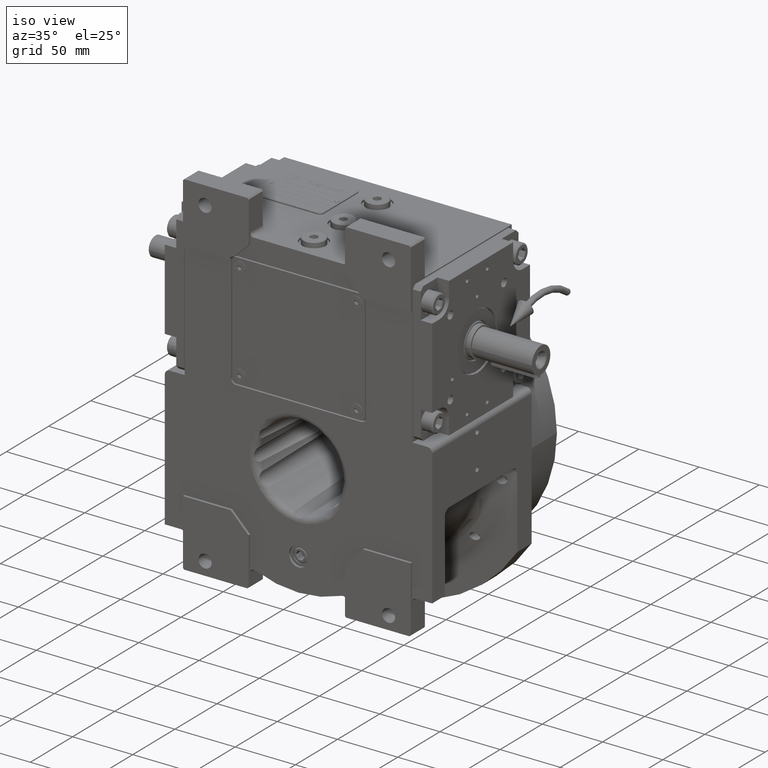
[diagram: clean part render]
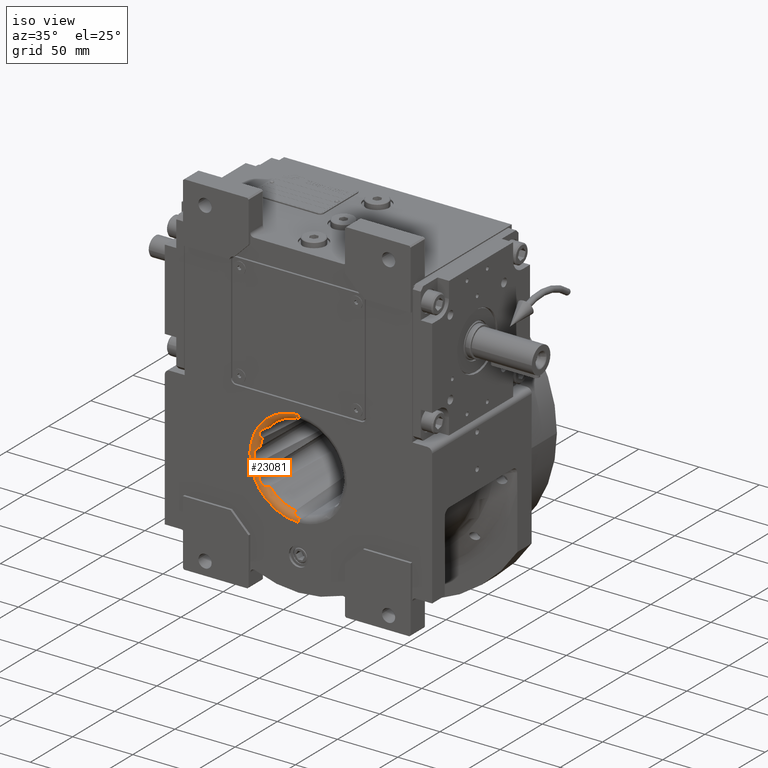
[diagram: same view with one face highlighted and labeled with its STEP entity id]
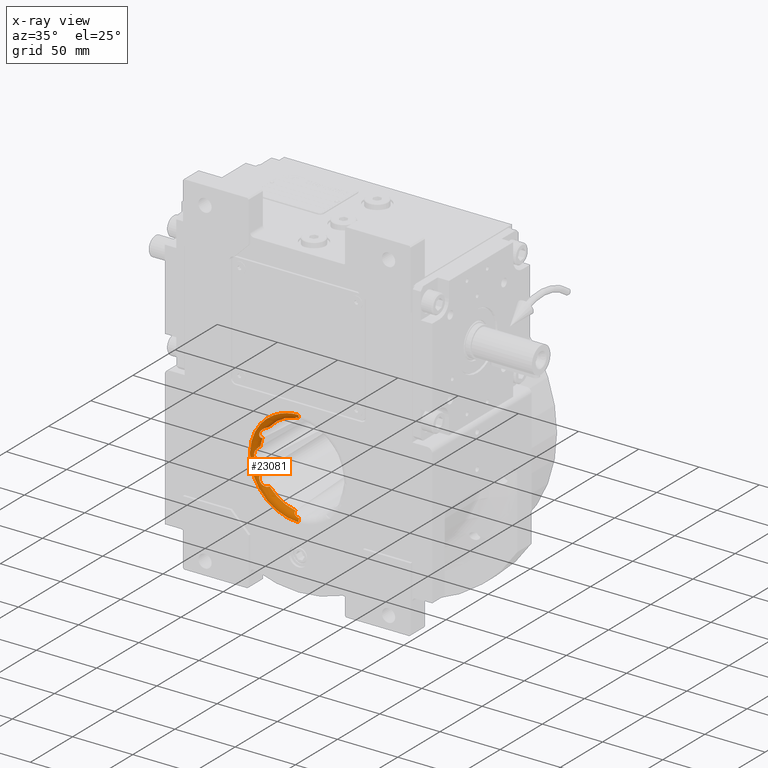
[diagram: x-ray of the same camera — body ghosted, the highlighted face saturated]
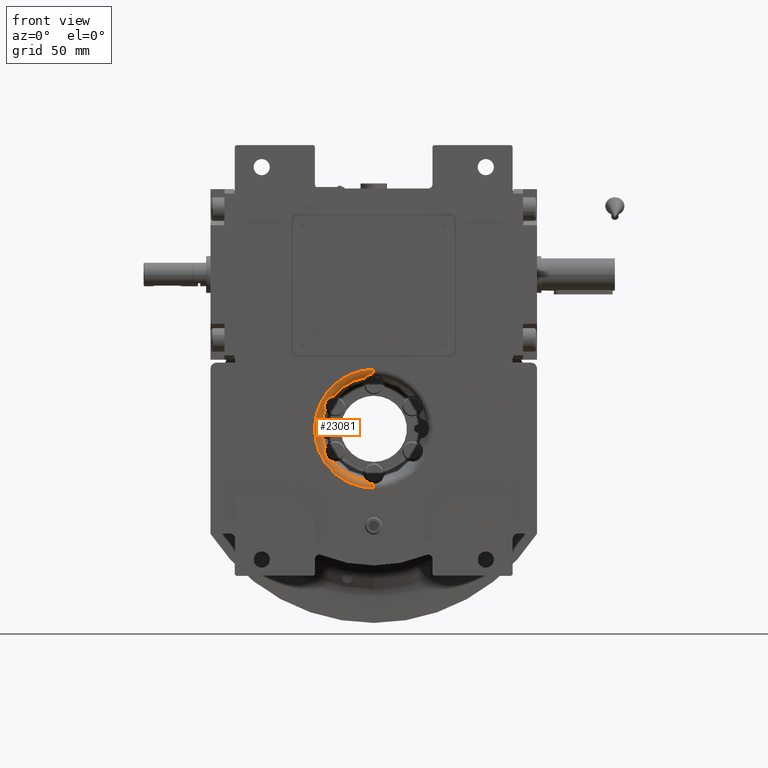
[diagram: same view with one face highlighted and labeled with its STEP entity id]
A machine part, iso view. The second image highlights one B-rep face of the part: STEP entity #23081.
The next image is the same camera in x-ray: the body ghosted, the highlighted face saturated — about 0% of this face is hidden behind the body in this view.
A second angle (front view) of the same face is appended — the face is thin or edge-on in the first view.
In plain terms, the highlighted toroidal blend (fillet) surface has major radius 40.3096 mm and minor (blend) radius 5 mm.
Its self-contained STEP definition (entity closure, byte-faithful):
#72 = AXIS2_PLACEMENT_3D ( 'NONE', #7279, #6939, #23350 ) ;
#605 = CARTESIAN_POINT ( 'NONE',  ( -33.18463355244283264, -52.51304589151614266, -17.09080855749210670 ) ) ;
#707 = CARTESIAN_POINT ( 'NONE',  ( -3.873265404993707417, -51.88301660350855826, -36.42246871604197622 ) ) ;
#1011 = CARTESIAN_POINT ( 'NONE',  ( -33.13981055533902520, -49.92077090289513563, -12.76320821760508650 ) ) ;
#1065 = CARTESIAN_POINT ( 'NONE',  ( -1.915896034665662384, -52.49325482596481862, -37.25139006299750122 ) ) ;
#1416 = CARTESIAN_POINT ( 'NONE',  ( -3.552697779826194946, -52.03964563101411045, -36.60600020603263260 ) ) ;
#1633 = CARTESIAN_POINT ( 'NONE',  ( -5.709080662315418664, -49.04780223731273736, 34.86273980539079531 ) ) ;
#1641 = CARTESIAN_POINT ( 'NONE',  ( -33.16420768629468796, -50.08288911404545019, 12.84237103832086291 ) ) ;
#1791 = CARTESIAN_POINT ( 'NONE',  ( -33.48066850808882577, -51.94653394036682670, 15.00006573923518260 ) ) ;
#1872 = CARTESIAN_POINT ( 'NONE',  ( -34.84639029672330679, -48.69402850002909844, -5.723853692384699876 ) ) ;
#2139 = CARTESIAN_POINT ( 'NONE',  ( -32.27624098121643215, -52.63306527710172844, 19.08495180356094423 ) ) ;
#2318 = VERTEX_POINT ( 'NONE', #51293 ) ;
#2322 = CARTESIAN_POINT ( 'NONE',  ( -5.387433122653863649, -50.25629916344718140, 35.21784468955429759 ) ) ;
#2328 = CARTESIAN_POINT ( 'NONE',  ( -33.20376525769709275, -50.31782160579956553, 12.98095620934589256 ) ) ;
#2476 = CARTESIAN_POINT ( 'NONE',  ( -37.25098423368843470, -52.49300947963147479, 1.917445575779191724 ) ) ;
#2806 = CARTESIAN_POINT ( 'NONE',  ( -35.41752721714449592, -50.64966747116820756, 5.186441859107392638 ) ) ;
#2999 = CARTESIAN_POINT ( 'NONE',  ( -33.24545701223924254, -50.54520048868180737, 13.13682072575895887 ) ) ;
#3131 = CARTESIAN_POINT ( 'NONE',  ( -37.21721553879910971, -52.47236002905658125, 2.040129607822566804 ) ) ;
#3421 = EDGE_CURVE ( 'NONE', #47916, #64871, #22805, .T. ) ;
#3686 = CARTESIAN_POINT ( 'NONE',  ( -4.541814814041481796, -51.43050647626387928, 35.97103802571810149 ) ) ;
#3872 = CARTESIAN_POINT ( 'NONE',  ( -35.71156677532395207, -51.11644979081465578, -4.870261559808177765 ) ) ;
#3987 = CARTESIAN_POINT ( 'NONE',  ( -5.723853692384750502, -48.69402850002909844, -34.84639029672324995 ) ) ;
#4221 = CARTESIAN_POINT ( 'NONE',  ( -37.20514037371771110, -52.46491046812602832, -2.082363054648926681 ) ) ;
#4530 = VERTEX_POINT ( 'NONE', #39465 ) ;
#4573 = CARTESIAN_POINT ( 'NONE',  ( -35.38985876883432269, -50.60022425254800993, -5.215066509444270082 ) ) ;
#4890 = CARTESIAN_POINT ( 'NONE',  ( -33.43725824763967580, -51.51270214224268784, -14.17376328051294720 ) ) ;
#5517 = CARTESIAN_POINT ( 'NONE',  ( -33.28157461314903287, -52.45048440668971779, -16.71832979066892833 ) ) ;
#5632 = CARTESIAN_POINT ( 'NONE',  ( -3.858442048008802860, -51.89094338257653050, -36.43138624565670369 ) ) ;
#5876 = CARTESIAN_POINT ( 'NONE',  ( -29.83633626812149586, -51.99876485710264262, -21.43405917139864769 ) ) ;
#5936 = CARTESIAN_POINT ( 'NONE',  ( -33.24545450998900975, -50.54515852359235595, -13.13677640902548305 ) ) ;
#6274 = CARTESIAN_POINT ( 'NONE',  ( -33.26639435941415712, -50.65332744764122452, -13.21983680953254847 ) ) ;
#6939 = DIRECTION ( 'NONE',  ( 0.000000000000000000, 1.000000000000000000, 0.000000000000000000 ) ) ;
#6947 = CARTESIAN_POINT ( 'NONE',  ( 7.105427357600998703E-15, -48.69402850002909844, 3.907985046680549760E-14 ) ) ;
#7028 = CARTESIAN_POINT ( 'NONE',  ( -37.47512975713212313, -52.62272417589633733, 0.7071437188893635595 ) ) ;
#7046 = CARTESIAN_POINT ( 'NONE',  ( -27.49880254169563543, -49.71014762109352603, 22.34948615973246433 ) ) ;
#7129 = EDGE_CURVE ( 'NONE', #62687, #60997, #30265, .T. ) ;
#7234 = CARTESIAN_POINT ( 'NONE',  ( -33.07614190768946827, -49.41840807794840629, 12.56593321534884033 ) ) ;
#7279 = CARTESIAN_POINT ( 'NONE',  ( 4.263256414560599853E-14, -48.69402850002909844, 0.000000000000000000 ) ) ;
#7338 = ORIENTED_EDGE ( 'NONE', *, *, #44630, .F. ) ;
#7358 = CARTESIAN_POINT ( 'NONE',  ( -36.44970332882142117, -51.90707011274375304, 3.827281497563381762 ) ) ;
#7380 = CARTESIAN_POINT ( 'NONE',  ( -33.28154941635014552, -52.45048733185149814, 16.71838823757915549 ) ) ;
#7567 = CARTESIAN_POINT ( 'NONE',  ( -33.45300411767336612, -51.61031179591828533, 14.33060310004557358 ) ) ;
#7733 = CARTESIAN_POINT ( 'NONE',  ( -30.73910345686766377, -52.35670050590202607, 20.82169795244909949 ) ) ;
#8064 = CARTESIAN_POINT ( 'NONE',  ( -36.47933388216215178, -51.93305820750704527, 3.777234142068195855 ) ) ;
#8090 = CARTESIAN_POINT ( 'NONE',  ( -31.97974603071826394, -52.60864723382204033, 19.50957310057121674 ) ) ;
#8264 = CARTESIAN_POINT ( 'NONE',  ( -33.43721194408176700, -51.51252245797751783, 14.17352376836019090 ) ) ;
#8314 = VERTEX_POINT ( 'NONE', #10220 ) ;
#8399 = CARTESIAN_POINT ( 'NONE',  ( -36.23459986853838188, -51.71445036787732619, 4.182271700431572370 ) ) ;
#8417 = CARTESIAN_POINT ( 'NONE',  ( -33.31069636601494466, -52.42586585141022226, 16.58975659442783979 ) ) ;
#8585 = CARTESIAN_POINT ( 'NONE',  ( -1.402137547263518469, -52.58474267382023015, 37.39942789236153686 ) ) ;
#8731 = CARTESIAN_POINT ( 'NONE',  ( -36.60484686924328201, -52.03864515488976394, 3.554194316089945183 ) ) ;
#8937 = CARTESIAN_POINT ( 'NONE',  ( -3.629204774569512182, -52.01591010109680013, 36.57070120480117481 ) ) ;
#8941 = VERTEX_POINT ( 'NONE', #47624 ) ;
#9287 = CARTESIAN_POINT ( 'NONE',  ( -2.887888764027416677, -52.28084012361226485, 36.92445607941008490 ) ) ;
#9733 = EDGE_CURVE ( 'NONE', #4530, #69030, #68381, .T. ) ;
#10067 = AXIS2_PLACEMENT_3D ( 'NONE', #65839, #38510, #59572 ) ;
#10163 = CARTESIAN_POINT ( 'NONE',  ( -35.37957790959985260, -50.58149279196173609, -5.225635647150380869 ) ) ;
#10220 = CARTESIAN_POINT ( 'NONE',  ( 1.603850723419534978E-09, -52.63596184683439816, -37.50000000000000000 ) ) ;
#10246 = DIRECTION ( 'NONE',  ( 1.823279159433930648E-09, -1.000000000000000000, -5.938027847207545066E-11 ) ) ;
#10433 = CARTESIAN_POINT ( 'NONE',  ( -27.81307528316129662, -50.27039267515787202, -22.27274870067007839 ) ) ;
#10454 = CARTESIAN_POINT ( 'NONE',  ( -80.61913312124997333, -53.49999999999999289, 40.30955543265923069 ) ) ;
#10511 = CARTESIAN_POINT ( 'NONE',  ( -34.86271863150035699, -49.04715064752940634, -5.709053451315803329 ) ) ;
#10764 = CARTESIAN_POINT ( 'NONE',  ( -30.73873988946485625, -52.35657776437595601, -20.82196410583442159 ) ) ;
#10814 = AXIS2_PLACEMENT_3D ( 'NONE', #42696, #16755, #38147 ) ;
#10872 = CARTESIAN_POINT ( 'NONE',  ( -2.038649379472030176, -52.47262412882859905, -37.21764271321538331 ) ) ;
#11174 = CARTESIAN_POINT ( 'NONE',  ( -33.48065902542213479, -51.94651877671617513, -15.00005041233808178 ) ) ;
#11800 = CARTESIAN_POINT ( 'NONE',  ( -31.82140708146827990, -52.58895953837681247, -19.71265100759440259 ) ) ;
#11901 = CARTESIAN_POINT ( 'NONE',  ( -3.825310640006858609, -51.90841265313808606, -36.45116754972293904 ) ) ;
#11914 = VERTEX_POINT ( 'NONE', #69055 ) ;
#12634 = CARTESIAN_POINT ( 'NONE',  ( -27.31593238095755183, -48.69402850002909844, 22.38019785351225011 ) ) ;
#12815 = CARTESIAN_POINT ( 'NONE',  ( -5.244244369721090315, -50.54810657213914737, 35.36152057421080741 ) ) ;
#12822 = CARTESIAN_POINT ( 'NONE',  ( -33.48054826416817065, -51.92894447340994901, 14.95929972303022737 ) ) ;
#12947 = CARTESIAN_POINT ( 'NONE',  ( -36.05591315747005865, -51.53332729828146341, 4.434423661270974648 ) ) ;
#12956 =( BOUNDED_CURVE ( )  B_SPLINE_CURVE ( 3, ( #51803, #31798, #10454, #42284 ),
 .UNSPECIFIED., .F., .F. ) 
 B_SPLINE_CURVE_WITH_KNOTS ( ( 4, 4 ),
 ( 1.432582689913126872, 4.574174019572492256 ),
 .UNSPECIFIED. ) 
 CURVE ( )  GEOMETRIC_REPRESENTATION_ITEM ( )  RATIONAL_B_SPLINE_CURVE ( ( 1.000000000000000000, 0.3333337746434759108, 0.3333337746434759108, 1.000000000000000000 ) ) 
 REPRESENTATION_ITEM ( '' )  );
#13147 = EDGE_LOOP ( 'NONE', ( #56792, #65827, #37470, #56391, #51188, #17355, #7338, #53738, #37037, #68287, #26068, #52101, #65219, #69190, #49192 ) ) ;
#13653 = CARTESIAN_POINT ( 'NONE',  ( -29.37057729870876699, -51.75232895819640078, 21.69044457255830238 ) ) ;
#13984 = CARTESIAN_POINT ( 'NONE',  ( -32.41530913567244454, -52.63782740952818529, 18.86193024834298981 ) ) ;
#14250 = AXIS2_PLACEMENT_3D ( 'NONE', #45812, #30069, #19875 ) ;
#15278 = TOROIDAL_SURFACE ( 'NONE', #10814, 40.30959420584725450, 5.000000000000000000 ) ;
#16095 = CARTESIAN_POINT ( 'NONE',  ( -3.339907106195123987, -52.12907734838216811, -36.71780282096259640 ) ) ;
#16217 = CARTESIAN_POINT ( 'NONE',  ( -27.31593238095755183, -48.69402850002909844, -22.38019785351220392 ) ) ;
#16325 = CARTESIAN_POINT ( 'NONE',  ( -31.22114954024809563, -52.47539370177713636, -20.36706681157427923 ) ) ;
#16381 = CARTESIAN_POINT ( 'NONE',  ( -33.04683412989722768, -49.06316082897349418, -12.48812047595954944 ) ) ;
#16433 = CARTESIAN_POINT ( 'NONE',  ( -1.644874037740767792, -52.53311730977171123, -37.31807545137642990 ) ) ;
#16485 = EDGE_CURVE ( 'NONE', #60997, #8941, #30305, .T. ) ;
#16743 = CARTESIAN_POINT ( 'NONE',  ( -33.47880876522896187, -51.87426845277273202, -14.83847188803557948 ) ) ;
#16755 = DIRECTION ( 'NONE',  ( 4.918457069522380007E-18, -1.000000000000000000, 1.317897701722361855E-19 ) ) ;
#16791 = CARTESIAN_POINT ( 'NONE',  ( -5.185284180732797843, -50.65179097772966088, -35.41871935916735481 ) ) ;
#17039 = CARTESIAN_POINT ( 'NONE',  ( -32.27610797783171392, -52.63304389908925174, -19.08511628727421794 ) ) ;
#17079 = CARTESIAN_POINT ( 'NONE',  ( -33.48065902542213479, -51.94651877671617513, -15.00005041233808178 ) ) ;
#17143 = CARTESIAN_POINT ( 'NONE',  ( -4.180282007070017514, -51.71590935629716057, -36.23605893271851386 ) ) ;
#17355 = ORIENTED_EDGE ( 'NONE', *, *, #39297, .F. ) ;
#17359 = CARTESIAN_POINT ( 'NONE',  ( -33.48066850808882577, -51.94653394036682670, 15.00006573923518260 ) ) ;
#17445 = VERTEX_POINT ( 'NONE', #62996 ) ;
#17693 = CARTESIAN_POINT ( 'NONE',  ( -5.660053882841972417, -49.38902629018181045, 34.92249272574539276 ) ) ;
#17699 = CARTESIAN_POINT ( 'NONE',  ( -33.48019679877684496, -51.91098471384786706, 14.91874690793963509 ) ) ;
#17870 = CARTESIAN_POINT ( 'NONE',  ( -31.57118587857673475, -52.54735018177039763, 20.00172411728818744 ) ) ;
#18057 = CARTESIAN_POINT ( 'NONE',  ( -33.47920624286720681, -51.88341688618768899, 14.85827326806622928 ) ) ;
#18218 = CARTESIAN_POINT ( 'NONE',  ( -29.10636611566708254, -51.59332625701392772, 21.82219709305469380 ) ) ;
#18529 = CARTESIAN_POINT ( 'NONE',  ( -34.84639029672324995, -48.69402850002909844, 5.723853692384790470 ) ) ;
#18548 = CARTESIAN_POINT ( 'NONE',  ( -33.48087625288028590, -52.14504185209687392, 15.46143532285286959 ) ) ;
#18729 = CARTESIAN_POINT ( 'NONE',  ( -4.234545782369425027, -51.66433971525663083, 36.19103113200473132 ) ) ;
#18735 = CARTESIAN_POINT ( 'NONE',  ( -33.22426399728276181, -50.43316458786283363, 13.05520228204081334 ) ) ;
#19071 = CARTESIAN_POINT ( 'NONE',  ( -2.729881623492799392, -52.32472363895173828, 36.98829363976439311 ) ) ;
#19216 = CARTESIAN_POINT ( 'NONE',  ( -35.59153589107744864, -50.93297691740608002, 4.999542714259984422 ) ) ;
#19235 = CARTESIAN_POINT ( 'NONE',  ( -31.30987083567114126, -52.49528762525406478, 20.27890224730619551 ) ) ;
#19407 = CARTESIAN_POINT ( 'NONE',  ( -5.052230305298202495, -50.88291087528137524, 35.54746896820848434 ) ) ;
#19875 = DIRECTION ( 'NONE',  ( -1.823235189940330996E-09, -1.000000000000000000, 5.937889069329574197E-11 ) ) ;
#19929 = CARTESIAN_POINT ( 'NONE',  ( -37.49999999996260414, -52.63596185006461070, 8.021083177529011375E-14 ) ) ;
#20094 = CARTESIAN_POINT ( 'NONE',  ( -2.211513715078419207, -52.44106279324884667, 37.16683635482556980 ) ) ;
#20945 = CARTESIAN_POINT ( 'NONE',  ( -33.47919926927412604, -51.88335013683047947, -14.85813770133309220 ) ) ;
#20964 = CARTESIAN_POINT ( 'NONE',  ( -36.25584774437306379, -51.72874381554331791, -4.138326285946494210 ) ) ;
#21040 = DIRECTION ( 'NONE',  ( 1.000000000000000000, 1.823279159426514974E-09, 1.249135085591654028E-10 ) ) ;
#21232 = CARTESIAN_POINT ( 'NONE',  ( -30.33721481329616054, -52.22506984246449946, -21.12382421556090151 ) ) ;
#21347 = CARTESIAN_POINT ( 'NONE',  ( -5.165745639727560956, -50.68437087273895969, -35.43741778940820808 ) ) ;
#21604 = CARTESIAN_POINT ( 'NONE',  ( -37.49999999996260414, -52.63596185006461070, 8.021083177529011375E-14 ) ) ;
#21623 = CARTESIAN_POINT ( 'NONE',  ( -34.84639029672324995, -48.69402850002909844, 5.723853692384790470 ) ) ;
#21695 = CARTESIAN_POINT ( 'NONE',  ( -1.392152352208962274, -52.56464103771448748, -37.37202038903561885 ) ) ;
#21927 = CARTESIAN_POINT ( 'NONE',  ( -28.35016232162652727, -50.97036712872834130, -22.11845893550750830 ) ) ;
#22043 = CARTESIAN_POINT ( 'NONE',  ( -2.408118901776639564, -52.40757125818002038, -37.11215947056903275 ) ) ;
#22287 = CARTESIAN_POINT ( 'NONE',  ( -27.99487110530884948, -50.53926129246902832, -22.22432816892106189 ) ) ;
#22805 = CIRCLE ( 'NONE', #67605, 35.31336033009884545 ) ;
#22966 = CARTESIAN_POINT ( 'NONE',  ( -33.47463011282244594, -51.80151121282146676, 14.68520001375111406 ) ) ;
#23081 = ADVANCED_FACE ( 'NONE', ( #58511 ), #15278, .T. ) ;
#23112 = CARTESIAN_POINT ( 'NONE',  ( -33.43874839451936509, -52.29148303849282797, 15.95211892573137469 ) ) ;
#23350 = DIRECTION ( 'NONE',  ( -0.9867763920224401630, 0.000000000000000000, 0.1620874830058620097 ) ) ;
#23469 = CARTESIAN_POINT ( 'NONE',  ( -27.88221631701399517, -50.37978553059161158, 22.25508433607395986 ) ) ;
#23654 = CARTESIAN_POINT ( 'NONE',  ( -33.46934774206440011, -51.74677745830565812, 14.57902418020779933 ) ) ;
#23794 = CARTESIAN_POINT ( 'NONE',  ( -37.23410423135980096, -52.48271245820203745, 1.979424650383082573 ) ) ;
#24125 = CARTESIAN_POINT ( 'NONE',  ( -36.42988016328607159, -51.88955295918238164, 3.860482598544243693 ) ) ;
#25203 = CARTESIAN_POINT ( 'NONE',  ( -37.39900705304798834, -52.58451861614253176, -1.404435147095376868 ) ) ;
#25355 = CARTESIAN_POINT ( 'NONE',  ( -2.080993371778599776, -52.46516507062594314, 37.20554895856389521 ) ) ;
#26068 = ORIENTED_EDGE ( 'NONE', *, *, #36686, .T. ) ;
#26222 = CARTESIAN_POINT ( 'NONE',  ( -33.22428206948126928, -50.43317977599809865, -13.05517705560438202 ) ) ;
#26243 = CARTESIAN_POINT ( 'NONE',  ( -36.36603438118659426, -51.83193400220010005, -3.964955959277055353 ) ) ;
#26434 = CARTESIAN_POINT ( 'NONE',  ( -2.273736754432320090E-13, -48.69402850002909844, -2.664535259100374750E-14 ) ) ;
#26506 = CARTESIAN_POINT ( 'NONE',  ( -27.31593238095755183, -48.69402850002909844, -22.38019785351220392 ) ) ;
#26612 = CARTESIAN_POINT ( 'NONE',  ( -4.998169086099377267, -50.93486924980448549, -35.59279415036061778 ) ) ;
#26854 = CARTESIAN_POINT ( 'NONE',  ( -33.26553695913618469, -52.46253985258577757, -16.78490719616134186 ) ) ;
#26929 = EDGE_CURVE ( 'NONE', #17445, #54419, #27959, .T. ) ;
#26969 = CARTESIAN_POINT ( 'NONE',  ( -4.759485884212919515, -51.22257027136030416, -35.79913352069126375 ) ) ;
#27217 = CARTESIAN_POINT ( 'NONE',  ( -32.98485581098537267, -52.58824656776976525, -17.69557827719220455 ) ) ;
#27325 = CARTESIAN_POINT ( 'NONE',  ( -1.770545072158311584, -52.51592466892537203, -37.28897095162052011 ) ) ;
#27613 = CARTESIAN_POINT ( 'NONE',  ( -33.16425630549210268, -50.08303215230356642, -12.84238301068604393 ) ) ;
#27904 = CARTESIAN_POINT ( 'NONE',  ( -33.07242516352254569, -52.56323015633705609, -17.45515814675720634 ) ) ;
#27959 = CIRCLE ( 'NONE', #10067, 35.31336033009876729 ) ;
#28016 = CARTESIAN_POINT ( 'NONE',  ( -0.3553892396707352686, -52.63601862953337474, -37.50008358898192284 ) ) ;
#28307 = DIRECTION ( 'NONE',  ( 0.000000000000000000, 1.000000000000000000, 0.000000000000000000 ) ) ;
#28402 = CARTESIAN_POINT ( 'NONE',  ( -33.32432813776592440, -52.41297220444015892, 16.52572224663769873 ) ) ;
#28582 = CARTESIAN_POINT ( 'NONE',  ( -5.337701821182513129, -50.36790029760967968, 35.26884467609753671 ) ) ;
#28588 = CARTESIAN_POINT ( 'NONE',  ( -33.37939893499930122, -51.19734212860618072, 13.72915272302015666 ) ) ;
#28720 = CARTESIAN_POINT ( 'NONE',  ( -36.42091420161597881, -51.88157790526675228, 3.875386462153763922 ) ) ;
#28740 = CARTESIAN_POINT ( 'NONE',  ( -29.83647181324047182, -51.99880890158390656, 21.43394373489381266 ) ) ;
#29092 = CARTESIAN_POINT ( 'NONE',  ( -27.34777071429455830, -49.21603130016585936, 22.37332468078894365 ) ) ;
#29277 = CARTESIAN_POINT ( 'NONE',  ( -4.015853436467339499, -51.80299540013687221, 36.33450886199639029 ) ) ;
#29421 = CARTESIAN_POINT ( 'NONE',  ( -36.78847422855026394, -52.18241533499048757, 3.193797387080735017 ) ) ;
#29442 = CARTESIAN_POINT ( 'NONE',  ( -33.18468010031037352, -52.51304639989451317, 17.09071938582931693 ) ) ;
#29939 = CARTESIAN_POINT ( 'NONE',  ( -3.962931184501737203, -51.83334785138096379, 36.36752667266266315 ) ) ;
#30069 = DIRECTION ( 'NONE',  ( -1.000000000000000000, 1.823235189932914908E-09, -1.248917852221759926E-10 ) ) ;
#30087 = CARTESIAN_POINT ( 'NONE',  ( -37.31771862321887312, -52.53290910169268813, 1.646514318443663694 ) ) ;
#30265 = CIRCLE ( 'NONE', #72, 35.31336033009884545 ) ;
#30305 = B_SPLINE_CURVE_WITH_KNOTS ( 'NONE', 3,
 ( #54881, #45011, #7234, #44305, #1641, #2328, #18735, #2999, #66084, #43977, #44654, #28588, #8264, #7567, #23654, #22966, #65399, #40097, #18057, #17699, #12822, #17359 ),
 .UNSPECIFIED., .F., .F.,
 ( 4, 2, 2, 1, 2, 2, 2, 2, 1, 2, 2, 4 ),
 ( 0.000000000000000000, 0.06530604510271932617, 0.09795906765407899619, 0.1142855789297583108, 0.1224488345675978779, 0.1306120902054374588, 0.1959181353081504429, 0.2285711578595068516, 0.2448976691351850699, 0.2489792969541045620, 0.2530609247730240541, 0.2612241804108624832 ),
 .UNSPECIFIED. ) ;
#30488 = CARTESIAN_POINT ( 'NONE',  ( -37.11961633128517946, -52.41119237297490940, -2.361438990490695389 ) ) ;
#30825 = CARTESIAN_POINT ( 'NONE',  ( -35.33198131337395864, -50.49248030931178732, -5.274176207015236706 ) ) ;
#31165 = CARTESIAN_POINT ( 'NONE',  ( -36.56951582499389986, -52.01488440821322001, -3.630697685066335723 ) ) ;
#31520 = CARTESIAN_POINT ( 'NONE',  ( -35.96965129305191766, -51.42891455428230785, -4.543601400665266965 ) ) ;
#31780 = CARTESIAN_POINT ( 'NONE',  ( -28.15008051918888654, -50.73773405834917583, -22.17961611171277525 ) ) ;
#31798 = CARTESIAN_POINT ( 'NONE',  ( -80.61913312099703433, -53.49999999999999289, -40.30952624498007708 ) ) ;
#31850 = CARTESIAN_POINT ( 'NONE',  ( -36.40000266279670171, -51.86281982276476299, -3.909829758492772811 ) ) ;
#32109 = CARTESIAN_POINT ( 'NONE',  ( -32.66951811604123179, -52.63282135042043564, -18.40311764438456521 ) ) ;
#32231 = CARTESIAN_POINT ( 'NONE',  ( -37.37171492615870960, -52.56446644682317526, 1.393794187926078454 ) ) ;
#32470 = CARTESIAN_POINT ( 'NONE',  ( -27.49874785484550088, -49.70986542429800892, -22.34942202990607285 ) ) ;
#32529 = CARTESIAN_POINT ( 'NONE',  ( -33.37943476192960190, -51.19757949302542954, -13.72946986635216682 ) ) ;
#32823 = CARTESIAN_POINT ( 'NONE',  ( -28.90433241759817662, -51.45227678388720705, -21.91058010015575519 ) ) ;
#32883 = CARTESIAN_POINT ( 'NONE',  ( -33.46937295990100836, -51.74681481219867862, -14.57904754091486765 ) ) ;
#33193 = B_SPLINE_CURVE_WITH_KNOTS ( 'NONE', 3,
 ( #54189, #1633, #17693, #50312, #60492, #2322, #28582, #49970, #12815, #34176, #50983, #19407, #40441, #3686, #66768, #18729, #46377, #29277, #29939, #35192, #62892, #8937, #62186, #9287, #19071, #56583, #67787, #20094, #51327, #34511, #25355, #8585, #40090, #50653 ),
 .UNSPECIFIED., .F., .F.,
 ( 4, 2, 2, 1, 1, 2, 2, 2, 2, 1, 1, 2, 2, 2, 2, 1, 1, 2, 2, 4 ),
 ( 0.000000000000000000, 0.1250000000000232869, 0.1875000000000345279, 0.2187500000000407729, 0.2343750000000444089, 0.2421875000000448253, 0.2500000000000451861, 0.3750000000000362488, 0.4375000000000318079, 0.4687500000000288658, 0.4843750000000280886, 0.4921875000000280886, 0.5000000000000280886, 0.6250000000000194289, 0.6875000000000147660, 0.7187500000000121014, 0.7343750000000108802, 0.7421875000000103251, 0.7500000000000097700, 1.000000000000000000 ),
 .UNSPECIFIED. ) ;
#33690 = EDGE_CURVE ( 'NONE', #62746, #4530, #55057, .T. ) ;
#33992 = CARTESIAN_POINT ( 'NONE',  ( -29.61155332908765558, -51.88571261543327751, 21.56234932649571334 ) ) ;
#34176 = CARTESIAN_POINT ( 'NONE',  ( -5.224591461864956266, -50.58361883684219862, 35.38071667490158489 ) ) ;
#34329 = CARTESIAN_POINT ( 'NONE',  ( -28.11108987820337646, -50.69025118455301282, 22.19116009868353956 ) ) ;
#34338 = EDGE_CURVE ( 'NONE', #54419, #11914, #33193, .T. ) ;
#34511 = CARTESIAN_POINT ( 'NONE',  ( -2.103838133957934176, -52.46106213540085150, 37.19892139164589651 ) ) ;
#35192 = CARTESIAN_POINT ( 'NONE',  ( -3.927364173150671878, -51.85339626484316256, 36.38951893049233632 ) ) ;
#35351 = CARTESIAN_POINT ( 'NONE',  ( -28.52665296932562455, -51.14114105755216144, 22.05853010360588939 ) ) ;
#36070 = CARTESIAN_POINT ( 'NONE',  ( -35.54621144813484079, -50.88097923027670078, -5.053572992507513462 ) ) ;
#36628 = CIRCLE ( 'NONE', #14250, 4.999999999999997335 ) ;
#36686 = EDGE_CURVE ( 'NONE', #64871, #62746, #62297, .T. ) ;
#37037 = ORIENTED_EDGE ( 'NONE', *, *, #48520, .T. ) ;
#37081 = CARTESIAN_POINT ( 'NONE',  ( -33.47464488507965541, -51.80150128521027852, -14.68514706449953344 ) ) ;
#37104 = CARTESIAN_POINT ( 'NONE',  ( -34.84639029672330679, -48.69402850002909844, -5.723853692384699876 ) ) ;
#37138 = CARTESIAN_POINT ( 'NONE',  ( -0.7059246910271010922, -52.62281146501420181, -37.47527891408871170 ) ) ;
#37470 = ORIENTED_EDGE ( 'NONE', *, *, #52344, .T. ) ;
#37487 = CARTESIAN_POINT ( 'NONE',  ( -5.528909143604412435, -50.05637871796363925, -35.08652819490773567 ) ) ;
#37714 = CARTESIAN_POINT ( 'NONE',  ( -28.52636104173949505, -51.14089828867427201, -22.05866134413853530 ) ) ;
#37772 = CARTESIAN_POINT ( 'NONE',  ( -33.07617599617984894, -49.41862454316068209, -12.56596163033717595 ) ) ;
#37820 = CARTESIAN_POINT ( 'NONE',  ( -5.723853692384750502, -48.69402850002909844, -34.84639029672324995 ) ) ;
#38073 = CARTESIAN_POINT ( 'NONE',  ( -31.30983067031450062, -52.49528704351350683, -20.27896254746444882 ) ) ;
#38147 = DIRECTION ( 'NONE',  ( 0.02678532785635648686, 6.641563648602939450E-35, -0.9996412087402295477 ) ) ;
#38180 = CARTESIAN_POINT ( 'NONE',  ( -4.432578927862634188, -51.53484705336150995, -36.05731220110909163 ) ) ;
#38423 = CARTESIAN_POINT ( 'NONE',  ( -32.78340051876850936, -52.62304107399577191, -18.16955845959296312 ) ) ;
#38510 = DIRECTION ( 'NONE',  ( 0.000000000000000000, 1.000000000000000000, 0.000000000000000000 ) ) ;
#38534 = CARTESIAN_POINT ( 'NONE',  ( -2.019194410546042207, -52.47597893397734481, -37.22310471339809368 ) ) ;
#39297 = EDGE_CURVE ( 'NONE', #50168, #11914, #45326, .T. ) ;
#39465 = CARTESIAN_POINT ( 'NONE',  ( -33.03978607334229878, -48.69402850002909844, -12.46619244321105846 ) ) ;
#39563 = CARTESIAN_POINT ( 'NONE',  ( -37.22268275660523784, -52.47571902507422692, 2.020679979795305670 ) ) ;
#39584 = CARTESIAN_POINT ( 'NONE',  ( -28.15013193581880202, -50.73778085825670559, 22.17958812407125535 ) ) ;
#39913 = CARTESIAN_POINT ( 'NONE',  ( -27.99484523414551873, -50.53926012206709828, 22.22436048947700016 ) ) ;
#40090 = CARTESIAN_POINT ( 'NONE',  ( -0.7110346611223111735, -52.63607783442117949, 37.50017074357123903 ) ) ;
#40097 = CARTESIAN_POINT ( 'NONE',  ( -33.47881434670390632, -51.87435534680471960, 14.83865528480795248 ) ) ;
#40417 = CARTESIAN_POINT ( 'NONE',  ( -1.264761546777279996E-10, -53.50000000000000000, 40.30959420574835406 ) ) ;
#40441 = CARTESIAN_POINT ( 'NONE',  ( -4.868713509596809708, -51.11822196150435360, 35.71288034965603941 ) ) ;
#40917 = CARTESIAN_POINT ( 'NONE',  ( -36.71685402489494265, -52.12829075710034488, 3.341139710922214956 ) ) ;
#41305 = CARTESIAN_POINT ( 'NONE',  ( -36.72054412596853012, -52.13325453623824046, -3.346850531333006806 ) ) ;
#42262 = CARTESIAN_POINT ( 'NONE',  ( -27.88221310447397627, -50.37970870706406146, -22.25503616437941545 ) ) ;
#42284 = CARTESIAN_POINT ( 'NONE',  ( -1.264761546777279996E-10, -53.50000000000000000, 40.30959420574835406 ) ) ;
#42375 = CARTESIAN_POINT ( 'NONE',  ( -3.657082585409741959, -51.99282415957798520, -36.54896482574234540 ) ) ;
#42544 = DIRECTION ( 'NONE',  ( 0.000000000000000000, 1.000000000000000000, 0.000000000000000000 ) ) ;
#42617 = CARTESIAN_POINT ( 'NONE',  ( -31.57099815148755440, -52.54732939689233717, -20.00196673868200037 ) ) ;
#42657 = B_SPLINE_CURVE_WITH_KNOTS ( 'NONE', 3,
 ( #65183, #28016, #37138, #48706, #21695, #16433, #27325, #1065, #49403, #38534, #10872, #22043, #42733, #53602, #16095, #1416, #42375, #58551, #11901, #5632, #707, #17143, #38180, #26969, #43065, #26612, #48348, #47989, #21347, #16791, #64139, #37487, #64478, #37820 ),
 .UNSPECIFIED., .F., .F.,
 ( 4, 2, 2, 1, 1, 2, 2, 2, 2, 1, 1, 2, 2, 2, 2, 1, 1, 2, 2, 4 ),
 ( 0.000000000000000000, 0.1250000000000116573, 0.1875000000000174860, 0.2187500000000201505, 0.2343750000000213718, 0.2421875000000222600, 0.2500000000000230926, 0.3750000000000291989, 0.4375000000000318079, 0.4687500000000325295, 0.4843750000000329181, 0.4921875000000336953, 0.5000000000000344169, 0.6250000000000393019, 0.6875000000000417444, 0.7187500000000431877, 0.7343750000000440759, 0.7421875000000428546, 0.7500000000000417444, 1.000000000000000000 ),
 .UNSPECIFIED. ) ;
#42679 = CARTESIAN_POINT ( 'NONE',  ( -33.48053227737001691, -51.92890995106537844, -14.95925558971303992 ) ) ;
#42696 = CARTESIAN_POINT ( 'NONE',  ( 0.000000000000000000, -48.50000000000000000, 2.075601271575409789E-14 ) ) ;
#42733 = CARTESIAN_POINT ( 'NONE',  ( -2.734876952242799142, -52.32990321998717320, -36.99229463609920998 ) ) ;
#42962 = CARTESIAN_POINT ( 'NONE',  ( -29.58681365607735003, -51.87268377217358051, -21.57599796854096752 ) ) ;
#43065 = CARTESIAN_POINT ( 'NONE',  ( -4.859880929590135956, -51.11171319813578862, -35.71475506714770631 ) ) ;
#43303 = CARTESIAN_POINT ( 'NONE',  ( -33.31070689276598529, -52.42588835643303469, -16.58979957195732879 ) ) ;
#43357 = CARTESIAN_POINT ( 'NONE',  ( -33.47774655512009900, -51.85362284805252386, -14.79448117773757509 ) ) ;
#43655 = CARTESIAN_POINT ( 'NONE',  ( -31.48531922150639417, -52.53142051501603760, -20.09594164209535094 ) ) ;
#43977 = CARTESIAN_POINT ( 'NONE',  ( -33.26640977064165838, -50.65337444815707357, 13.21985933045327322 ) ) ;
#44305 = CARTESIAN_POINT ( 'NONE',  ( -33.13976139157254863, -49.92059330197390210, 12.76318837579350252 ) ) ;
#44366 = DIRECTION ( 'NONE',  ( -0.1620874830058615379, 0.000000000000000000, -0.9867763920224401630 ) ) ;
#44465 = CARTESIAN_POINT ( 'NONE',  ( -29.45074726583380098, -51.79875677450912974, 21.64931501245877854 ) ) ;
#44630 = EDGE_CURVE ( 'NONE', #2318, #50168, #12956, .T. ) ;
#44654 = CARTESIAN_POINT ( 'NONE',  ( -33.32681352970188726, -50.95796771461537134, 13.46871286635902010 ) ) ;
#44825 = CARTESIAN_POINT ( 'NONE',  ( -29.58672797869576598, -51.87263358306481109, 21.57603779285322787 ) ) ;
#45011 = CARTESIAN_POINT ( 'NONE',  ( -33.04683298299450911, -49.06300647993869291, 12.48810653588042996 ) ) ;
#45143 = CARTESIAN_POINT ( 'NONE',  ( -35.79781234966287684, -51.22087791309412097, 4.761083771520181251 ) ) ;
#45163 = CARTESIAN_POINT ( 'NONE',  ( -31.48546756047721473, -52.53143582434906733, 20.09574830436934434 ) ) ;
#45326 = CIRCLE ( 'NONE', #58831, 5.000000000000087930 ) ;
#45812 = CARTESIAN_POINT ( 'NONE',  ( 9.495576041210020624E-09, -48.50000000000000000, -40.30959420584725450 ) ) ;
#45833 = CARTESIAN_POINT ( 'NONE',  ( -37.11171655400906388, -52.40727755464643423, 2.409194244699167875 ) ) ;
#45851 = CARTESIAN_POINT ( 'NONE',  ( -32.78352015866696689, -52.62301266750998963, 18.16925762873534467 ) ) ;
#46185 = CARTESIAN_POINT ( 'NONE',  ( -35.08589548655488954, -50.05446180875416218, 5.529198774539549888 ) ) ;
#46222 = CARTESIAN_POINT ( 'NONE',  ( -37.19850839716625757, -52.46080346388614402, -2.105193219097342361 ) ) ;
#46377 = CARTESIAN_POINT ( 'NONE',  ( -4.136350574461441276, -51.73019518093536817, 36.25730900794112443 ) ) ;
#46919 = CARTESIAN_POINT ( 'NONE',  ( -35.36041305861011352, -50.54599003041073502, -5.245238070575850564 ) ) ;
#47615 = CARTESIAN_POINT ( 'NONE',  ( -36.33302609460633192, -51.80157108875530980, -4.017864707340940811 ) ) ;
#47624 = CARTESIAN_POINT ( 'NONE',  ( -33.48066850808882577, -51.94653394036682670, 15.00006573923518260 ) ) ;
#47882 = CARTESIAN_POINT ( 'NONE',  ( -29.73623849775244565, -51.95039087709604075, -21.49279114163281790 ) ) ;
#47916 = VERTEX_POINT ( 'NONE', #3987 ) ;
#47941 = CARTESIAN_POINT ( 'NONE',  ( -33.45304754598995345, -51.61044702623436109, -14.33077991663580519 ) ) ;
#47989 = CARTESIAN_POINT ( 'NONE',  ( -5.136070342689128765, -50.73290559809238687, -35.46567060434934149 ) ) ;
#48227 = CARTESIAN_POINT ( 'NONE',  ( -33.32433212886061824, -52.41300609219497630, -16.52581018458420914 ) ) ;
#48348 = CARTESIAN_POINT ( 'NONE',  ( -5.064238222530486055, -50.84381052462173756, -35.53296774911841283 ) ) ;
#48520 = EDGE_CURVE ( 'NONE', #8314, #47916, #42657, .T. ) ;
#48597 = CARTESIAN_POINT ( 'NONE',  ( -29.37048728016148047, -51.75226369813898231, -21.69047191015317466 ) ) ;
#48706 = CARTESIAN_POINT ( 'NONE',  ( -1.221830501698371485, -52.58184760362785681, -37.40229286780651563 ) ) ;
#49192 = ORIENTED_EDGE ( 'NONE', *, *, #62318, .T. ) ;
#49403 = CARTESIAN_POINT ( 'NONE',  ( -1.977912365093305924, -52.48296653042544335, -37.23451985414325804 ) ) ;
#49771 = CARTESIAN_POINT ( 'NONE',  ( -37.40202558355561280, -52.58169497981474194, 1.223412563933994113 ) ) ;
#49792 = CARTESIAN_POINT ( 'NONE',  ( -31.82166990026322040, -52.58899155538282599, 19.71231372236344370 ) ) ;
#49970 = CARTESIAN_POINT ( 'NONE',  ( -5.273256697089690803, -50.49458095573584160, 35.33304163517856011 ) ) ;
#50133 = CARTESIAN_POINT ( 'NONE',  ( -28.90464695036618537, -51.45251600168563044, 21.91045421014645100 ) ) ;
#50168 = VERTEX_POINT ( 'NONE', #40417 ) ;
#50312 = CARTESIAN_POINT ( 'NONE',  ( -5.531674865056157131, -49.87266461314937516, 35.06522989246701627 ) ) ;
#50458 = CARTESIAN_POINT ( 'NONE',  ( -37.28858991426645986, -52.51569948671738075, 1.772161780002129650 ) ) ;
#50482 = CARTESIAN_POINT ( 'NONE',  ( -31.22107025168800121, -52.47537369524989970, 20.36714077585572014 ) ) ;
#50653 = CARTESIAN_POINT ( 'NONE',  ( -1.603856535494735125E-09, -52.63596184683439816, 37.50000000000000000 ) ) ;
#50795 = CARTESIAN_POINT ( 'NONE',  ( -35.53172959687864818, -50.84184820920857106, 5.065541676440982855 ) ) ;
#50813 = CARTESIAN_POINT ( 'NONE',  ( -29.73629946630251908, -51.95040457042858861, 21.49272782483559752 ) ) ;
#50983 = CARTESIAN_POINT ( 'NONE',  ( -5.213985633454488067, -50.60237093196975167, 35.39102302310730863 ) ) ;
#51124 = CARTESIAN_POINT ( 'NONE',  ( -35.46445849641921200, -50.73085163937383157, 5.137289340209327371 ) ) ;
#51188 = ORIENTED_EDGE ( 'NONE', *, *, #34338, .T. ) ;
#51293 = CARTESIAN_POINT ( 'NONE',  ( 1.264666971694413862E-10, -53.50000000000000000, -40.30959420574829721 ) ) ;
#51327 = CARTESIAN_POINT ( 'NONE',  ( -2.147007264603004728, -52.45314069633096210, 37.18618173183961773 ) ) ;
#51803 = CARTESIAN_POINT ( 'NONE',  ( 1.264666971694413862E-10, -53.50000000000000000, -40.30959420574829721 ) ) ;
#51861 = CARTESIAN_POINT ( 'NONE',  ( -37.16640983572973056, -52.44078884913847105, -2.212772513858344947 ) ) ;
#52101 = ORIENTED_EDGE ( 'NONE', *, *, #33690, .T. ) ;
#52195 = CARTESIAN_POINT ( 'NONE',  ( -36.98772609010396906, -52.32430996658571587, -2.730876037901805553 ) ) ;
#52344 = EDGE_CURVE ( 'NONE', #8941, #17445, #58921, .T. ) ;
#52543 = CARTESIAN_POINT ( 'NONE',  ( -36.92381443596131163, -52.28035557931097799, -2.888882551878399596 ) ) ;
#52870 = CARTESIAN_POINT ( 'NONE',  ( -33.48018417484713183, -51.91093793313002891, -14.91866779478908533 ) ) ;
#52887 = CARTESIAN_POINT ( 'NONE',  ( -37.07678581123033723, -52.38337654284047318, -2.485909879438955805 ) ) ;
#53229 = CARTESIAN_POINT ( 'NONE',  ( -36.05737927985836677, -51.52631744753318799, -4.426109131346763093 ) ) ;
#53496 = CARTESIAN_POINT ( 'NONE',  ( -33.21885165357419112, -52.49420048062663113, -16.96874070924852163 ) ) ;
#53557 = CARTESIAN_POINT ( 'NONE',  ( -33.20379629175867819, -50.31788416556457122, -12.98094523765599106 ) ) ;
#53602 = CARTESIAN_POINT ( 'NONE',  ( -3.192681566628079004, -52.18308567064448056, -36.78930608203450703 ) ) ;
#53738 = ORIENTED_EDGE ( 'NONE', *, *, #61288, .T. ) ;
#53822 = AXIS2_PLACEMENT_3D ( 'NONE', #26434, #42544, #63961 ) ;
#53859 = CARTESIAN_POINT ( 'NONE',  ( -29.53221175524876330, -51.84334611511969371, -21.60566600594680509 ) ) ;
#54189 = CARTESIAN_POINT ( 'NONE',  ( -5.723853692384750502, -48.69402850002909844, 34.84639029672330679 ) ) ;
#54211 = CARTESIAN_POINT ( 'NONE',  ( -33.48065902542213479, -51.94651877671617513, -15.00005041233808178 ) ) ;
#54266 = CARTESIAN_POINT ( 'NONE',  ( -33.32681476171630663, -50.95814186081423003, -13.46893414121745458 ) ) ;
#54419 = VERTEX_POINT ( 'NONE', #57237 ) ;
#54542 = CARTESIAN_POINT ( 'NONE',  ( -28.11107397282198761, -50.69023729966111347, -22.19117005792242736 ) ) ;
#54881 = CARTESIAN_POINT ( 'NONE',  ( -33.03978607334229878, -48.69402850002909844, 12.46619244321112063 ) ) ;
#55016 = CARTESIAN_POINT ( 'NONE',  ( -37.50001804720491094, -52.63597410645481034, 0.3561209110558548607 ) ) ;
#55057 = B_SPLINE_CURVE_WITH_KNOTS ( 'NONE', 3,
 ( #11174, #42679, #52870, #20945, #16743, #43357, #37081, #32883, #47941, #4890, #32529, #54266, #6274, #63743, #5936, #26222, #53557, #27613, #1011, #37772, #16381, #64094 ),
 .UNSPECIFIED., .F., .F.,
 ( 4, 2, 2, 1, 2, 2, 2, 2, 1, 2, 2, 4 ),
 ( 0.7387891908886350389, 0.7469520286733645209, 0.7510334475657294284, 0.7551148664580943359, 0.7714405420275540770, 0.8040918931664728930, 0.8693945954443100810, 0.8775574332290403401, 0.8857202710137704882, 0.9020459465832316726, 0.9346972977221540413, 1.000000000000000000 ),
 .UNSPECIFIED. ) ;
#55366 = CARTESIAN_POINT ( 'NONE',  ( -34.87905876915396419, -49.40060510384442694, 5.694260973935819869 ) ) ;
#55386 = CARTESIAN_POINT ( 'NONE',  ( -32.98500176666401984, -52.58821805067860566, 17.69522100608212867 ) ) ;
#56391 = ORIENTED_EDGE ( 'NONE', *, *, #26929, .T. ) ;
#56422 = CARTESIAN_POINT ( 'NONE',  ( -29.53217472947603994, -51.84332695768009813, 21.60568760061848792 ) ) ;
#56583 = CARTESIAN_POINT ( 'NONE',  ( -2.484828966687359753, -52.38371084341780204, 37.07727184074094851 ) ) ;
#56792 = ORIENTED_EDGE ( 'NONE', *, *, #7129, .T. ) ;
#57237 = CARTESIAN_POINT ( 'NONE',  ( -5.723853692384750502, -48.69402850002909844, 34.84639029672330679 ) ) ;
#57444 = B_SPLINE_CURVE_WITH_KNOTS ( 'NONE', 3,
 ( #60286, #55016, #7028, #49771, #32231, #30087, #50458, #2476, #23794, #39563, #3131, #45833, #67596, #29421, #40917, #8731, #61314, #8064, #7358, #24125, #28720, #8399, #12947, #45143, #67247, #19216, #50795, #51124, #61665, #2806, #61995, #46185, #55366, #18529 ),
 .UNSPECIFIED., .F., .F.,
 ( 4, 2, 2, 1, 1, 2, 2, 2, 2, 1, 1, 2, 2, 2, 2, 1, 1, 2, 2, 4 ),
 ( 0.5000005676679050159, 0.5625004967094189290, 0.5937504612301758300, 0.6093754434905542805, 0.6171879346207436168, 0.6210941801858383959, 0.6250004257509331751, 0.6875003547924478653, 0.7187503193132047663, 0.7343753015735834389, 0.7421877927037731082, 0.7460940382688678874, 0.7500002838339627775, 0.8125002128754804653, 0.8437501773962392537, 0.8593751596566187034, 0.8671876507868081507, 0.8710938963519023748, 0.8750001419169963768, 1.000000000000000000 ),
 .UNSPECIFIED. ) ;
#57476 = CARTESIAN_POINT ( 'NONE',  ( -35.06469899328508433, -49.87096634862095357, -5.531975177983561309 ) ) ;
#57755 = EDGE_CURVE ( 'NONE', #69030, #61444, #59363, .T. ) ;
#57815 = CARTESIAN_POINT ( 'NONE',  ( -35.12098123532669547, -50.02738598863438568, -5.480134135199405065 ) ) ;
#58167 = CARTESIAN_POINT ( 'NONE',  ( -34.92230038514989587, -49.38786160803616099, -5.660090759269589711 ) ) ;
#58253 = CARTESIAN_POINT ( 'NONE',  ( -9.495824261203000555E-09, -48.50000000000000000, 40.30959420584730424 ) ) ;
#58444 = CARTESIAN_POINT ( 'NONE',  ( -27.34776727166245891, -49.21579150797197144, -22.37331418890029866 ) ) ;
#58511 = FACE_OUTER_BOUND ( 'NONE', #13147, .T. ) ;
#58520 = CARTESIAN_POINT ( 'NONE',  ( -36.18958736086523231, -51.66286048788158070, -4.236484116442540859 ) ) ;
#58551 = CARTESIAN_POINT ( 'NONE',  ( -3.775365088185394402, -51.93433030990010479, -36.48073606175100991 ) ) ;
#58780 = CARTESIAN_POINT ( 'NONE',  ( -29.45071512104846079, -51.79873107903147655, -21.64931960723165361 ) ) ;
#58831 = AXIS2_PLACEMENT_3D ( 'NONE', #58253, #21040, #10246 ) ;
#58921 = B_SPLINE_CURVE_WITH_KNOTS ( 'NONE', 3,
 ( #1791, #18548, #23112, #28402, #8417, #7380, #62017, #65894, #29442, #61334, #55386, #45851, #67267, #13984, #2139, #8090, #49792, #17870, #45163, #19235, #50482, #7733, #61682, #28740, #50813, #33992, #44825, #56422, #44465, #13653, #18218, #50133, #35351, #66590, #39584, #34329, #61001, #39913, #23469, #66245, #7046, #29092, #12634 ),
 .UNSPECIFIED., .F., .F.,
 ( 4, 2, 2, 2, 2, 2, 2, 2, 2, 2, 2, 2, 2, 2, 1, 2, 2, 2, 2, 2, 2, 4 ),
 ( 0.2612241804108624832, 0.3535711578595079341, 0.3651145300405879701, 0.3766579022216680062, 0.3997446465838280227, 0.4459181353081479449, 0.4920916240324678670, 0.5382651127567877891, 0.5844386014811077112, 0.6075253458432672282, 0.6306120902054266342, 0.7229590676540631478, 0.7460458120162221096, 0.7518174981067622387, 0.7575891841973023677, 0.7691325563783837360, 0.8153060451027087652, 0.8614795338270337943, 0.8730229060081148296, 0.8845662781891958648, 0.9076530225513569361, 1.000000000000000000 ),
 .UNSPECIFIED. ) ;
#59363 = B_SPLINE_CURVE_WITH_KNOTS ( 'NONE', 3,
 ( #37104, #10511, #58167, #57476, #57815, #69018, #63411, #30825, #46919, #10163, #4573, #36070, #3872, #31520, #53229, #58520, #20964, #47615, #26243, #67968, #31850, #31165, #41305, #52543, #52195, #52887, #30488, #51861, #67636, #46222, #4221, #25203, #68329, #19929 ),
 .UNSPECIFIED., .F., .F.,
 ( 4, 2, 2, 1, 1, 2, 2, 2, 2, 1, 1, 2, 2, 2, 2, 1, 1, 2, 2, 4 ),
 ( 0.000000000000000000, 0.06250007095849334504, 0.09375010643773999675, 0.1093751241773635446, 0.1171876330471755823, 0.1210938874820810668, 0.1250001419169865513, 0.1875002128754728881, 0.2187502483547157095, 0.2343752660943372035, 0.2421877749641484778, 0.2460940293990541428, 0.2500002838339597799, 0.3125003547924430913, 0.3437503902716844695, 0.3593754080113049643, 0.3671879168811153504, 0.3710941713160208488, 0.3750004257509263472, 0.5000005676679050159 ),
 .UNSPECIFIED. ) ;
#59487 = CARTESIAN_POINT ( 'NONE',  ( -33.43870015161952836, -52.29160688258078693, -15.95255991967144560 ) ) ;
#59572 = DIRECTION ( 'NONE',  ( -0.7735296818432545463, 0.000000000000000000, 0.6337600739297747365 ) ) ;
#60286 = CARTESIAN_POINT ( 'NONE',  ( -37.49999999996260414, -52.63596185006461070, 8.021083177529011375E-14 ) ) ;
#60492 = CARTESIAN_POINT ( 'NONE',  ( -5.479718036409415127, -50.02922342846537873, 35.12163865966763865 ) ) ;
#60997 = VERTEX_POINT ( 'NONE', #68710 ) ;
#61001 = CARTESIAN_POINT ( 'NONE',  ( -28.03513028290948128, -50.59323479966415960, 22.21306719588008960 ) ) ;
#61288 = EDGE_CURVE ( 'NONE', #2318, #8314, #36628, .T. ) ;
#61314 = CARTESIAN_POINT ( 'NONE',  ( -36.54770197314593361, -51.99170685750615206, 3.658733280671657706 ) ) ;
#61334 = CARTESIAN_POINT ( 'NONE',  ( -33.07254936853257021, -52.56320848893270181, 17.45485700321764710 ) ) ;
#61444 = VERTEX_POINT ( 'NONE', #21604 ) ;
#61665 = CARTESIAN_POINT ( 'NONE',  ( -35.43621755538785578, -50.68227547496077534, 5.166927914258923948 ) ) ;
#61682 = CARTESIAN_POINT ( 'NONE',  ( -30.33763547017747086, -52.22522622449788088, 21.12351240239303252 ) ) ;
#61995 = CARTESIAN_POINT ( 'NONE',  ( -35.40883116458070390, -50.63429406205139571, 5.195476240417607805 ) ) ;
#62017 = CARTESIAN_POINT ( 'NONE',  ( -33.26548957792962824, -52.46256714566623458, 16.78507972990651353 ) ) ;
#62186 = CARTESIAN_POINT ( 'NONE',  ( -3.345691109882090952, -52.13401398792836261, 36.72146529940186355 ) ) ;
#62297 = B_SPLINE_CURVE_WITH_KNOTS ( 'NONE', 3,
 ( #26506, #58444, #32470, #10433, #42262, #22287, #69283, #54542, #31780, #21927, #37714, #32823, #63679, #48597, #58780, #53859, #42962, #64368, #47882, #5876, #21232, #10764, #16325, #38073, #43655, #42617, #11800, #65071, #17039, #64035, #32109, #38423, #27217, #27904, #605, #53496, #26854, #5517, #43303, #48227, #59487, #68941, #54211 ),
 .UNSPECIFIED., .F., .F.,
 ( 4, 2, 2, 2, 2, 2, 2, 1, 2, 2, 2, 2, 2, 2, 2, 2, 2, 2, 2, 2, 2, 4 ),
 ( 0.000000000000000000, 0.09234864886106161630, 0.1154358110763277490, 0.1269793921839613149, 0.1385229732915948808, 0.1846972977221306711, 0.2308716221526664336, 0.2424152032603008877, 0.2481869938141182397, 0.2539587843679355639, 0.2770459465832066925, 0.3693945954442907076, 0.3924817576595615032, 0.4155689198748323543, 0.4617432443053753888, 0.5079175687359185343, 0.5540918931664616798, 0.6002662175970048253, 0.6233533798122764535, 0.6348969609199122122, 0.6464405420275478598, 0.7387891908886350389 ),
 .UNSPECIFIED. ) ;
#62318 = EDGE_CURVE ( 'NONE', #61444, #62687, #57444, .T. ) ;
#62687 = VERTEX_POINT ( 'NONE', #21623 ) ;
#62746 = VERTEX_POINT ( 'NONE', #17079 ) ;
#62892 = CARTESIAN_POINT ( 'NONE',  ( -3.907753669937934049, -51.86424423689207686, 36.40152814893994559 ) ) ;
#62996 = CARTESIAN_POINT ( 'NONE',  ( -27.31593238095755183, -48.69402850002909844, 22.38019785351225011 ) ) ;
#63411 = CARTESIAN_POINT ( 'NONE',  ( -35.26789628715570757, -50.36584836253410913, -5.338458874991545144 ) ) ;
#63679 = CARTESIAN_POINT ( 'NONE',  ( -29.10610765021931101, -51.59314180384494364, -21.82229256886011015 ) ) ;
#63743 = CARTESIAN_POINT ( 'NONE',  ( -33.25967818971928125, -50.61906307847737452, -13.19280694728246139 ) ) ;
#63961 = DIRECTION ( 'NONE',  ( -0.9356171648491156123, 0.000000000000000000, -0.3530163180926663702 ) ) ;
#64035 = CARTESIAN_POINT ( 'NONE',  ( -32.41541406928512714, -52.63782132828605143, -18.86172920714115264 ) ) ;
#64094 = CARTESIAN_POINT ( 'NONE',  ( -33.03978607334229878, -48.69402850002909844, -12.46619244321105846 ) ) ;
#64139 = CARTESIAN_POINT ( 'NONE',  ( -5.194316907912101655, -50.63645387683902754, -35.41003222769455760 ) ) ;
#64368 = CARTESIAN_POINT ( 'NONE',  ( -29.61160658844019977, -51.88574788270602056, -21.56233139341135185 ) ) ;
#64478 = CARTESIAN_POINT ( 'NONE',  ( -5.694300234708060238, -49.40179032405077209, -34.87909896497714612 ) ) ;
#64871 = VERTEX_POINT ( 'NONE', #16217 ) ;
#65071 = CARTESIAN_POINT ( 'NONE',  ( -31.97949066724833145, -52.60861459975757981, -19.50990255033392984 ) ) ;
#65183 = CARTESIAN_POINT ( 'NONE',  ( 1.603850723419534978E-09, -52.63596184683439816, -37.50000000000000000 ) ) ;
#65219 = ORIENTED_EDGE ( 'NONE', *, *, #9733, .T. ) ;
#65399 = CARTESIAN_POINT ( 'NONE',  ( -33.47774609865169992, -51.85368734645415145, 14.79462638611709657 ) ) ;
#65827 = ORIENTED_EDGE ( 'NONE', *, *, #16485, .T. ) ;
#65839 = CARTESIAN_POINT ( 'NONE',  ( -2.842170943040399481E-14, -48.69402850002909844, 6.394884621840900411E-14 ) ) ;
#65894 = CARTESIAN_POINT ( 'NONE',  ( -33.21886480365418493, -52.49421037881309360, 16.96874346949090295 ) ) ;
#66084 = CARTESIAN_POINT ( 'NONE',  ( -33.25969623485335802, -50.61914520538103091, 13.19286513792437709 ) ) ;
#66245 = CARTESIAN_POINT ( 'NONE',  ( -27.81309122354305430, -50.27051233546709597, 22.27280259027973486 ) ) ;
#66590 = CARTESIAN_POINT ( 'NONE',  ( -28.35037556066501452, -50.97055849722994481, 22.11835270962417965 ) ) ;
#66768 = CARTESIAN_POINT ( 'NONE',  ( -4.424254601326856218, -51.52785900210152192, 36.05878848177189866 ) ) ;
#67247 = CARTESIAN_POINT ( 'NONE',  ( -35.71345797839347114, -51.10994973858990420, 4.861391692244556140 ) ) ;
#67267 = CARTESIAN_POINT ( 'NONE',  ( -32.66958967394847235, -52.63279990010138931, 18.40292938440687109 ) ) ;
#67596 = CARTESIAN_POINT ( 'NONE',  ( -36.99174877755145729, -52.32951320379698501, 2.735823557495811631 ) ) ;
#67605 = AXIS2_PLACEMENT_3D ( 'NONE', #6947, #28307, #44366 ) ;
#67636 = CARTESIAN_POINT ( 'NONE',  ( -37.18576368827460499, -52.45287621578109594, -2.148322745950571377 ) ) ;
#67787 = CARTESIAN_POINT ( 'NONE',  ( -2.360293437406041139, -52.41149373252869736, 37.12006897582752885 ) ) ;
#67968 = CARTESIAN_POINT ( 'NONE',  ( -36.38802021312287138, -51.85198914278544891, -3.929397563599771104 ) ) ;
#68287 = ORIENTED_EDGE ( 'NONE', *, *, #3421, .T. ) ;
#68329 = CARTESIAN_POINT ( 'NONE',  ( -37.49996390528383472, -52.63593732738541320, -0.7122434393803651620 ) ) ;
#68381 = CIRCLE ( 'NONE', #53822, 35.31336033009861097 ) ;
#68710 = CARTESIAN_POINT ( 'NONE',  ( -33.03978607334229878, -48.69402850002909844, 12.46619244321112063 ) ) ;
#68941 = CARTESIAN_POINT ( 'NONE',  ( -33.48082361012868802, -52.14515954087027438, -15.46182082588939721 ) ) ;
#69018 = CARTESIAN_POINT ( 'NONE',  ( -35.21699389580569317, -50.25430935889024653, -5.388068865621192138 ) ) ;
#69030 = VERTEX_POINT ( 'NONE', #1872 ) ;
#69055 = CARTESIAN_POINT ( 'NONE',  ( -1.603856535494735125E-09, -52.63596184683439816, 37.50000000000000000 ) ) ;
#69190 = ORIENTED_EDGE ( 'NONE', *, *, #57755, .T. ) ;
#69283 = CARTESIAN_POINT ( 'NONE',  ( -28.03519106946471950, -50.59329502141324042, -22.21303589765973996 ) ) ;